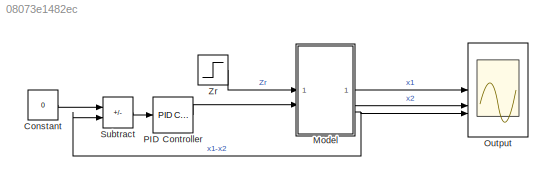
MODEL slx_08073e1482ec
KIND model
CONFIG AbsTol = auto
CONFIG EnableMultiTasking = off
CONFIG FixedStep = auto
CONFIG MaxStep = auto
CONFIG MinStep = auto
CONFIG RelTol = 1e-3
CONFIG SampleTimeConstraint = Unconstrained
CONFIG SolverName = VariableStepAuto
CONFIG StartTime = 0.0
CONFIG StopTime = 6
BLOCK [Constant] Constant
  Value = 0
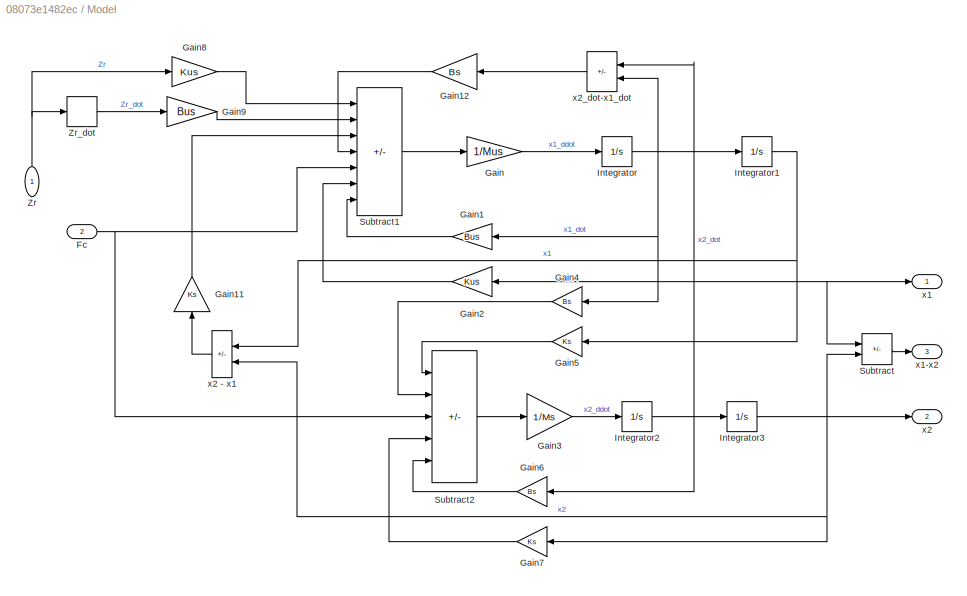
BLOCK [SubSystem] Model
BLOCK [Inport] Model/Fc
  Port = 2
BLOCK [Gain] Model/Gain
  Gain = 1/Mus
BLOCK [Gain] Model/Gain1
  Gain = Bus
BLOCK [Gain] Model/Gain11
  Gain = Ks
  NameLocation = right
BLOCK [Gain] Model/Gain12
  Gain = Bs
BLOCK [Gain] Model/Gain2
  Gain = Kus
BLOCK [Gain] Model/Gain3
  Gain = 1/Ms
BLOCK [Gain] Model/Gain4
  Gain = Bs
BLOCK [Gain] Model/Gain5
  Gain = Ks
BLOCK [Gain] Model/Gain6
  Gain = Bs
BLOCK [Gain] Model/Gain7
  Gain = Ks
BLOCK [Gain] Model/Gain8
  Gain = Kus
BLOCK [Gain] Model/Gain9
  Gain = Bus
BLOCK [Integrator] Model/Integrator
BLOCK [Integrator] Model/Integrator1
BLOCK [Integrator] Model/Integrator2
BLOCK [Integrator] Model/Integrator3
BLOCK [Sum] Model/Subtract
  IconShape = rectangular
  Inputs = +-
BLOCK [Sum] Model/Subtract1
  IconShape = rectangular
  Inputs = ++++---
BLOCK [Sum] Model/Subtract2
  IconShape = rectangular
  Inputs = +++--
BLOCK [Inport] Model/Zr
  NameLocation = right
BLOCK [Derivative] Model/Zr_dot
  CoefficientInTFapproximation = 0
BLOCK [Outport] Model/x1
BLOCK [Outport] Model/x1-x2
  Port = 3
BLOCK [Outport] Model/x2
  Port = 2
BLOCK [Sum] Model/x2 - x1
  IconShape = rectangular
  Inputs = -+
BLOCK [Sum] Model/x2_dot-x1_dot
  IconShape = rectangular
  Inputs = +-
BLOCK [Scope] Output
  Floating = off
  NumInputPorts = 3
  ScopeSpecificationString = Simulink.scopes.TimeScopeBlockCfg('CurrentConfiguration', extmgr.ConfigurationSet(extmgr.Configuration('Core','General UI',true),extmgr.Configuration('Core','Source UI',true),extmgr.Configuration('Sources','WiredSimulink',true,'DataLoggingVariableName','ScopeData1'),extmgr.Configuration('Visuals','Time Domain',true,'SerializedDisplays',{struct('MinYLimReal','-0.02672','MaxYLimReal','0.17966','YLab...<+1399ch>
BLOCK [Reference] PID Controller  REF=slpidlib/PID Controller
  SourceBlock = slpidlib/PID Controller
  SourceType = PID 1dof
BLOCK [Sum] Subtract
  IconShape = rectangular
  Inputs = +-
BLOCK [Step] Zr
  After = 0.1
  SampleTime = 0
LINE Constant:1 -> Subtract:1
NET Model/Fc:1 -> Model/Subtract1:5, Model/Subtract2:3
LINE Model/Gain11:1 -> Model/Subtract1:3
LINE Model/Gain12:1 -> Model/Subtract1:4
LINE Model/Gain1:1 -> Model/Subtract1:7
LINE Model/Gain2:1 -> Model/Subtract1:6
LINE Model/Gain3:1 -> Model/Integrator2:1
LINE Model/Gain4:1 -> Model/Subtract2:2
LINE Model/Gain5:1 -> Model/Subtract2:1
LINE Model/Gain6:1 -> Model/Subtract2:5
LINE Model/Gain7:1 -> Model/Subtract2:4
LINE Model/Gain8:1 -> Model/Subtract1:1
LINE Model/Gain9:1 -> Model/Subtract1:2
LINE Model/Gain:1 -> Model/Integrator:1
NET Model/Integrator1:1 -> Model/Gain2:1, Model/Gain5:1, Model/Subtract:1, Model/x1:1, Model/x2 - x1:1
NET Model/Integrator2:1 -> Model/Gain6:1, Model/Integrator3:1, Model/x2_dot-x1_dot:1
NET Model/Integrator3:1 -> Model/Gain7:1, Model/Subtract:2, Model/x2 - x1:2, Model/x2:1
NET Model/Integrator:1 -> Model/Gain1:1, Model/Gain4:1, Model/Integrator1:1, Model/x2_dot-x1_dot:2
LINE Model/Subtract1:1 -> Model/Gain:1
LINE Model/Subtract2:1 -> Model/Gain3:1
LINE Model/Subtract:1 -> Model/x1-x2:1
NET Model/Zr:1 -> Model/Gain8:1, Model/Zr_dot:1
LINE Model/Zr_dot:1 -> Model/Gain9:1
LINE Model/x2 - x1:1 -> Model/Gain11:1
LINE Model/x2_dot-x1_dot:1 -> Model/Gain12:1
LINE Model:1 -> Output:1
LINE Model:2 -> Output:2
NET Model:3 -> Output:3, Subtract:2
LINE PID Controller:1 -> Model:2
LINE Subtract:1 -> PID Controller:1
LINE Zr:1 -> Model:1
note: NET lines group one-source signal fan-out (src -> all destinations, sorted); 1:1 wires keep LINE
